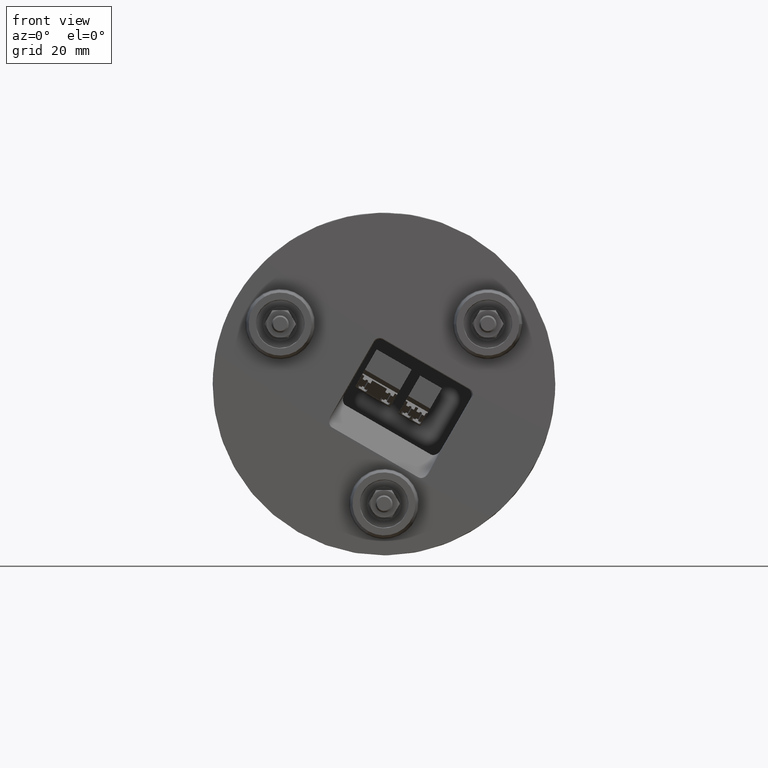
[diagram: clean part render]
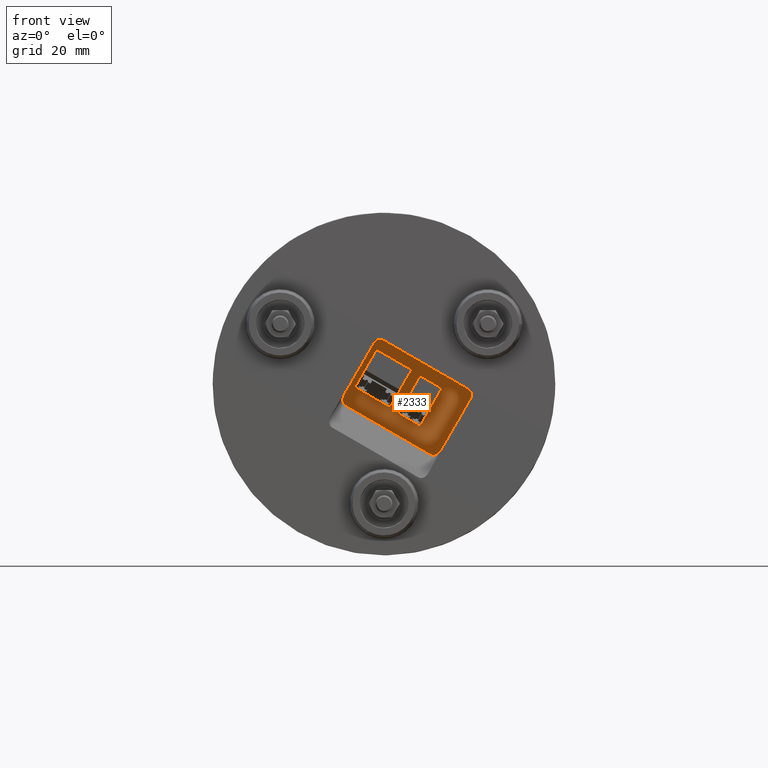
[diagram: same view with one face highlighted and labeled with its STEP entity id]
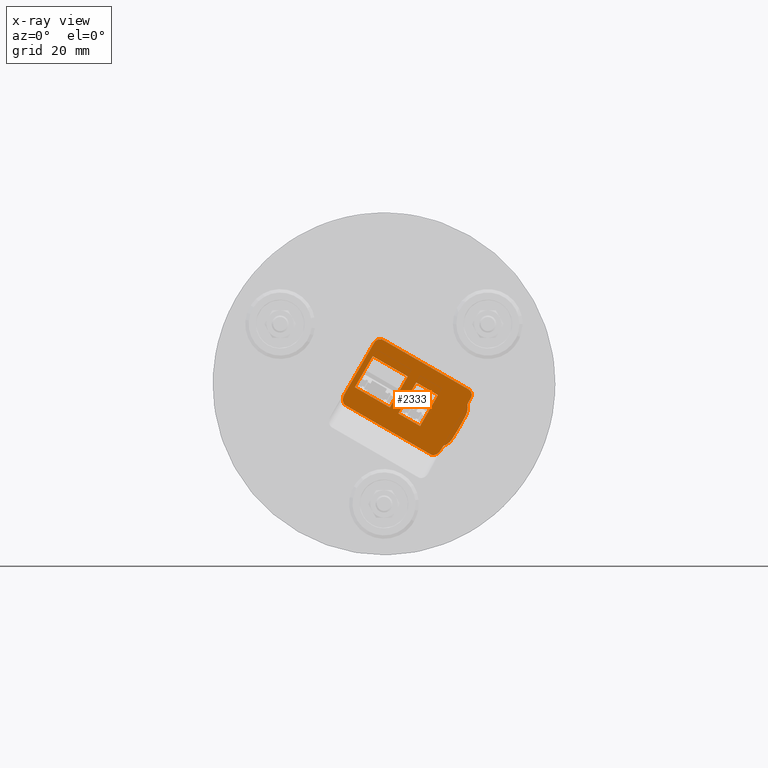
[diagram: x-ray of the same camera — body ghosted, the highlighted face saturated]
A machine part, front view. The second image highlights one B-rep face of the part: STEP entity #2333.
The next image is the same camera in x-ray: the body ghosted, the highlighted face saturated — about 0% of this face is hidden behind the body in this view.
In plain terms, the highlighted planar face has unit normal (-0, -1, 0).
Its self-contained STEP definition (entity closure, byte-faithful):
#79 = CARTESIAN_POINT ( 'NONE',  ( 4.902183732581579356, 21.85000000000000142, -1.329168707131093807 ) ) ;
#162 = CARTESIAN_POINT ( 'NONE',  ( 25.01902478308251432, 21.85000000000001918, -1.743034779679827562 ) ) ;
#166 = EDGE_CURVE ( 'NONE', #4940, #6361, #8542, .T. ) ;
#239 = CARTESIAN_POINT ( 'NONE',  ( -11.16915704096282091, 21.85000000000000142, -6.253190095488600164 ) ) ;
#288 = CARTESIAN_POINT ( 'NONE',  ( 13.59255079089150087, 21.85000000000000142, -20.54936878855840021 ) ) ;
#415 = CARTESIAN_POINT ( 'NONE',  ( 25.28521886244825012, 21.85000000000000142, -4.204716255604415309 ) ) ;
#435 = CARTESIAN_POINT ( 'NONE',  ( -2.591901714933272594, 21.85000000000001918, 12.51069453529683706 ) ) ;
#488 = EDGE_CURVE ( 'NONE', #7320, #1165, #6781, .T. ) ;
#498 = CARTESIAN_POINT ( 'NONE',  ( -12.16846356237257787, 21.85000000000000853, -5.625999451964581510 ) ) ;
#554 = VERTEX_POINT ( 'NONE', #7657 ) ;
#644 = DIRECTION ( 'NONE',  ( 0.8660254036215786488, -1.021804018925549457E-16, -0.5000000002820818024 ) ) ;
#691 =( BOUNDED_CURVE ( )  B_SPLINE_CURVE ( 3, ( #5982, #6023, #8006, #2610 ),
 .UNSPECIFIED., .F., .F. ) 
 B_SPLINE_CURVE_WITH_KNOTS ( ( 4, 4 ),
 ( 2.168404344971010101E-16, 0.7847891758013999519 ),
 .UNSPECIFIED. ) 
 CURVE ( )  GEOMETRIC_REPRESENTATION_ITEM ( )  RATIONAL_B_SPLINE_CURVE ( ( 1.000000000000000000, 0.9493306762745480354, 0.9493306762745480354, 1.000000000000000000 ) ) 
 REPRESENTATION_ITEM ( '' )  );
#698 = CARTESIAN_POINT ( 'NONE',  ( -3.391027403784485195, 21.85000000000000142, -3.873431753212990269 ) ) ;
#816 = EDGE_CURVE ( 'NONE', #554, #7688, #691, .T. ) ;
#829 = AXIS2_PLACEMENT_3D ( 'NONE', #4127, #6285, #2299 ) ;
#839 = ORIENTED_EDGE ( 'NONE', *, *, #488, .F. ) ;
#840 = EDGE_CURVE ( 'NONE', #5662, #3509, #4904, .T. ) ;
#847 = VECTOR ( 'NONE', #644, 1000.000000000000000 ) ;
#863 = CARTESIAN_POINT ( 'NONE',  ( 24.34150928055874985, 21.85000000000000142, -5.839269197797090527 ) ) ;
#868 = AXIS2_PLACEMENT_3D ( 'NONE', #8422, #1560, #7627 ) ;
#903 = CARTESIAN_POINT ( 'NONE',  ( 10.54054566609687882, 21.85000000000000142, -12.26323937402013975 ) ) ;
#951 = VECTOR ( 'NONE', #7228, 1000.000000000000114 ) ;
#978 = ORIENTED_EDGE ( 'NONE', *, *, #4134, .F. ) ;
#980 = EDGE_CURVE ( 'NONE', #1878, #4700, #1006, .T. ) ;
#1006 = LINE ( 'NONE', #3704, #8745 ) ;
#1012 = ORIENTED_EDGE ( 'NONE', *, *, #4347, .F. ) ;
#1049 = DIRECTION ( 'NONE',  ( -0.5000000002820849110, -6.750380208324718047E-17, -0.8660254036215768725 ) ) ;
#1165 = VERTEX_POINT ( 'NONE', #2187 ) ;
#1166 = VERTEX_POINT ( 'NONE', #6934 ) ;
#1168 = DIRECTION ( 'NONE',  ( 1.775317581900329579E-14, -1.299012864805119267E-16, -1.000000000000000000 ) ) ;
#1186 = VERTEX_POINT ( 'NONE', #863 ) ;
#1202 = EDGE_CURVE ( 'NONE', #4838, #5978, #7552, .T. ) ;
#1256 = LINE ( 'NONE', #3913, #951 ) ;
#1307 = LINE ( 'NONE', #7416, #7775 ) ;
#1328 = AXIS2_PLACEMENT_3D ( 'NONE', #7537, #6919, #8246 ) ;
#1358 = EDGE_CURVE ( 'NONE', #3509, #7110, #1256, .T. ) ;
#1503 = PLANE ( 'NONE',  #1328 ) ;
#1560 = DIRECTION ( 'NONE',  ( 5.473892273054979473E-17, 1.000000000000000000, -1.127510013337229951E-31 ) ) ;
#1615 = ORIENTED_EDGE ( 'NONE', *, *, #6458, .F. ) ;
#1641 = ORIENTED_EDGE ( 'NONE', *, *, #980, .F. ) ;
#1674 = ORIENTED_EDGE ( 'NONE', *, *, #4831, .F. ) ;
#1762 =( BOUNDED_CURVE ( )  B_SPLINE_CURVE ( 3, ( #5536, #2041, #8239, #4203 ),
 .UNSPECIFIED., .F., .F. ) 
 B_SPLINE_CURVE_WITH_KNOTS ( ( 4, 4 ),
 ( 1.622224293310129850, 3.169333955144944870 ),
 .UNSPECIFIED. ) 
 CURVE ( )  GEOMETRIC_REPRESENTATION_ITEM ( )  RATIONAL_B_SPLINE_CURVE ( ( 1.000000000000000000, 0.8102876638024719691, 0.8102876638024719691, 1.000000000000000000 ) ) 
 REPRESENTATION_ITEM ( '' )  );
#1838 = FACE_BOUND ( 'NONE', #4402, .T. ) ;
#1878 = VERTEX_POINT ( 'NONE', #3997 ) ;
#1937 = VECTOR ( 'NONE', #3245, 1000.000000000000114 ) ;
#1960 = VERTEX_POINT ( 'NONE', #6094 ) ;
#2015 = VECTOR ( 'NONE', #2370, 1000.000000000000114 ) ;
#2041 = CARTESIAN_POINT ( 'NONE',  ( 15.83144811766105775, 21.84999999999998366, -20.57912749636696503 ) ) ;
#2055 =( BOUNDED_CURVE ( )  B_SPLINE_CURVE ( 3, ( #5912, #435, #7946, #3876 ),
 .UNSPECIFIED., .F., .F. ) 
 B_SPLINE_CURVE_WITH_KNOTS ( ( 4, 4 ),
 ( 5.498396131378100016, 6.283185307179590673 ),
 .UNSPECIFIED. ) 
 CURVE ( )  GEOMETRIC_REPRESENTATION_ITEM ( )  RATIONAL_B_SPLINE_CURVE ( ( 1.000000000000000000, 0.9493306762745369332, 0.9493306762745369332, 1.000000000000000000 ) ) 
 REPRESENTATION_ITEM ( '' )  );
#2070 = DIRECTION ( 'NONE',  ( -0.5000000000000099920, -6.750380211652858112E-17, -0.8660254037844328234 ) ) ;
#2087 = LINE ( 'NONE', #4176, #8684 ) ;
#2187 = CARTESIAN_POINT ( 'NONE',  ( 17.22771009327700042, 21.85000000000000142, -18.16073081574285197 ) ) ;
#2291 = EDGE_CURVE ( 'NONE', #4700, #554, #2055, .T. ) ;
#2299 = DIRECTION ( 'NONE',  ( -4.119591534116790612E-15, 0.000000000000000000, -1.000000000000000000 ) ) ;
#2322 = ORIENTED_EDGE ( 'NONE', *, *, #2435, .F. ) ;
#2333 = ADVANCED_FACE ( 'NONE', ( #1838, #4548, #2413 ), #1503, .T. ) ;
#2365 = EDGE_CURVE ( 'NONE', #3478, #3521, #4157, .T. ) ;
#2367 = CARTESIAN_POINT ( 'NONE',  ( 1.808473596215614876, 21.85000000000000142, 5.132368152792130545 ) ) ;
#2370 = DIRECTION ( 'NONE',  ( 0.5000000000000099920, 6.750380211652858112E-17, 0.8660254037844328234 ) ) ;
#2387 = ORIENTED_EDGE ( 'NONE', *, *, #2558, .F. ) ;
#2413 = FACE_OUTER_BOUND ( 'NONE', #3999, .T. ) ;
#2435 = EDGE_CURVE ( 'NONE', #1165, #7964, #2087, .T. ) ;
#2453 = CARTESIAN_POINT ( 'NONE',  ( -5.334236540150419259, 21.85000000000000142, 4.580831292869030236 ) ) ;
#2558 = EDGE_CURVE ( 'NONE', #6361, #4391, #6018, .T. ) ;
#2581 = CARTESIAN_POINT ( 'NONE',  ( -8.443008986037188635, 21.85000000000000142, 17.57627943908610035 ) ) ;
#2610 = CARTESIAN_POINT ( 'NONE',  ( -0.1302202390086980022, 21.85000000000000142, 12.77688861466253911 ) ) ;
#2712 = CIRCLE ( 'NONE', #868, 5.053093623318319239 ) ;
#2851 = EDGE_CURVE ( 'NONE', #7964, #5741, #1762, .T. ) ;
#2874 = CARTESIAN_POINT ( 'NONE',  ( 1.727182732236854923, 21.85000000000000142, -6.828431751460009913 ) ) ;
#2968 = CARTESIAN_POINT ( 'NONE',  ( 25.62410694609626205, 21.85000000000000497, -3.206731086924946350 ) ) ;
#2995 = LINE ( 'NONE', #2367, #5198 ) ;
#3003 = ORIENTED_EDGE ( 'NONE', *, *, #2291, .F. ) ;
#3196 = CARTESIAN_POINT ( 'NONE',  ( -47.41489084828180012, 21.85000000000000142, 27.37500001544420059 ) ) ;
#3245 = DIRECTION ( 'NONE',  ( -0.5000000000000099920, -6.750380211652858112E-17, -0.8660254037844328234 ) ) ;
#3452 = CARTESIAN_POINT ( 'NONE',  ( -11.18517926977855481, 21.84999999999999432, -6.243939657361870843 ) ) ;
#3478 = VERTEX_POINT ( 'NONE', #4983 ) ;
#3480 = CARTESIAN_POINT ( 'NONE',  ( 11.31640919247115917, 21.85000000000000142, -10.91940434820033978 ) ) ;
#3509 = VERTEX_POINT ( 'NONE', #903 ) ;
#3521 = VERTEX_POINT ( 'NONE', #3604 ) ;
#3604 = CARTESIAN_POINT ( 'NONE',  ( -11.21667635569646038, 21.85000000000000142, -6.224544975927090107 ) ) ;
#3625 = ORIENTED_EDGE ( 'NONE', *, *, #6890, .T. ) ;
#3669 = EDGE_CURVE ( 'NONE', #1960, #7320, #6646, .T. ) ;
#3694 = CARTESIAN_POINT ( 'NONE',  ( -2.860606755253030098, 21.85000000000000142, 12.04528375356323977 ) ) ;
#3704 = CARTESIAN_POINT ( 'NONE',  ( -23.61121594257300060, 21.85000000000000142, -23.89582561984500231 ) ) ;
#3821 = VECTOR ( 'NONE', #7370, 1000.000000000000114 ) ;
#3872 = LINE ( 'NONE', #2453, #1937 ) ;
#3876 = CARTESIAN_POINT ( 'NONE',  ( -1.646987847786125059, 21.85000000000000142, 12.97676936261991898 ) ) ;
#3913 = CARTESIAN_POINT ( 'NONE',  ( 3.343874561216960029, 21.85000000000000142, -8.108239365835020251 ) ) ;
#3936 = CARTESIAN_POINT ( 'NONE',  ( -11.53192662277062119, 21.85000000000000142, -2.973882814360995219 ) ) ;
#3997 = CARTESIAN_POINT ( 'NONE',  ( -11.53192662277062119, 21.85000000000000142, -2.973882814360995219 ) ) ;
#3999 = EDGE_LOOP ( 'NONE', ( #839, #8638, #4494, #1615, #2387, #6410, #4832, #7361, #3003, #1641, #978, #8509, #7125, #6294, #2322 ) ) ;
#4127 = CARTESIAN_POINT ( 'NONE',  ( 15.64244660429474720, 21.85000000000000142, -13.36274219169212074 ) ) ;
#4134 = EDGE_CURVE ( 'NONE', #3521, #1878, #7812, .T. ) ;
#4157 =( BOUNDED_CURVE ( )  B_SPLINE_CURVE ( 3, ( #239, #3452, #4837, #4262 ),
 .UNSPECIFIED., .F., .F. ) 
 B_SPLINE_CURVE_WITH_KNOTS ( ( 4, 4 ),
 ( 6.255444005624429593, 6.283185307179580015 ),
 .UNSPECIFIED. ) 
 CURVE ( )  GEOMETRIC_REPRESENTATION_ITEM ( )  RATIONAL_B_SPLINE_CURVE ( ( 1.000000000000000000, 0.9999358693772130158, 0.9999358693772130158, 1.000000000000000000 ) ) 
 REPRESENTATION_ITEM ( '' )  );
#4176 = CARTESIAN_POINT ( 'NONE',  ( 4.534609675128700168, 21.85000000000000142, -40.14582562901239271 ) ) ;
#4203 = CARTESIAN_POINT ( 'NONE',  ( 13.59255079089150087, 21.85000000000000142, -20.54936878855840021 ) ) ;
#4232 = AXIS2_PLACEMENT_3D ( 'NONE', #3196, #5902, #1168 ) ;
#4262 = CARTESIAN_POINT ( 'NONE',  ( -11.21667635569646038, 21.85000000000000142, -6.224544975927090107 ) ) ;
#4293 = CARTESIAN_POINT ( 'NONE',  ( 19.88683889597530197, 21.85000000000000142, -16.10480149818850037 ) ) ;
#4347 = EDGE_CURVE ( 'NONE', #7626, #4462, #2995, .T. ) ;
#4369 = ORIENTED_EDGE ( 'NONE', *, *, #6454, .T. ) ;
#4391 = VERTEX_POINT ( 'NONE', #5034 ) ;
#4402 = EDGE_LOOP ( 'NONE', ( #5669, #6037, #1674, #1012 ) ) ;
#4420 = CARTESIAN_POINT ( 'NONE',  ( 4.951122461751809922, 21.85000000000000142, -7.244404340750279836 ) ) ;
#4458 = CARTESIAN_POINT ( 'NONE',  ( 4.534609675128069561, 21.85000000000000142, -40.14582562901264851 ) ) ;
#4462 = VERTEX_POINT ( 'NONE', #4592 ) ;
#4494 = ORIENTED_EDGE ( 'NONE', *, *, #5643, .F. ) ;
#4502 = VECTOR ( 'NONE', #2070, 1000.000000000000114 ) ;
#4548 = FACE_BOUND ( 'NONE', #8663, .T. ) ;
#4564 = VECTOR ( 'NONE', #1049, 999.9999999999998863 ) ;
#4592 = CARTESIAN_POINT ( 'NONE',  ( -3.309736540856585307, 21.85000000000000142, 8.087368151569018337 ) ) ;
#4608 = LINE ( 'NONE', #6434, #6938 ) ;
#4700 = VERTEX_POINT ( 'NONE', #3694 ) ;
#4804 = LINE ( 'NONE', #79, #3821 ) ;
#4831 = EDGE_CURVE ( 'NONE', #4462, #4838, #3872, .T. ) ;
#4832 = ORIENTED_EDGE ( 'NONE', *, *, #8297, .F. ) ;
#4837 = CARTESIAN_POINT ( 'NONE',  ( -11.20102005723597927, 21.84999999999999432, -6.234390671792309213 ) ) ;
#4838 = VERTEX_POINT ( 'NONE', #5958 ) ;
#4904 = LINE ( 'NONE', #3480, #4502 ) ;
#4940 = VERTEX_POINT ( 'NONE', #8701 ) ;
#4976 = CARTESIAN_POINT ( 'NONE',  ( 15.74004666464569979, 21.85000000051370250, -3.257439477728709676 ) ) ;
#4983 = CARTESIAN_POINT ( 'NONE',  ( -11.16915704096282091, 21.85000000000000142, -6.253190095488600164 ) ) ;
#4986 = ORIENTED_EDGE ( 'NONE', *, *, #1358, .T. ) ;
#4990 = CARTESIAN_POINT ( 'NONE',  ( -0.1302202390086980022, 21.85000000000000142, 12.77688861466253911 ) ) ;
#5034 = CARTESIAN_POINT ( 'NONE',  ( 25.28521886244825012, 21.85000000000000142, -4.204716255604415309 ) ) ;
#5081 = DIRECTION ( 'NONE',  ( -0.8660254037844328234, 1.021804018705681843E-16, 0.5000000000000099920 ) ) ;
#5141 = CARTESIAN_POINT ( 'NONE',  ( 25.55392390276803027, 21.85000000000000497, -3.739305473870846885 ) ) ;
#5198 = VECTOR ( 'NONE', #5081, 1000.000000000000114 ) ;
#5322 = CARTESIAN_POINT ( 'NONE',  ( -11.21667635569646038, 21.85000000000000142, -6.224544975927090107 ) ) ;
#5327 = DIRECTION ( 'NONE',  ( -0.8660254036215786488, 1.021804018925549457E-16, 0.5000000002820818024 ) ) ;
#5536 = CARTESIAN_POINT ( 'NONE',  ( 16.61389899493065059, 21.85000000000000142, -19.22388282352864763 ) ) ;
#5584 = DIRECTION ( 'NONE',  ( -0.5000000002820729206, -6.750380208324857331E-17, -0.8660254036215837559 ) ) ;
#5643 = EDGE_CURVE ( 'NONE', #1186, #1960, #2712, .T. ) ;
#5658 = CARTESIAN_POINT ( 'NONE',  ( 25.48509961040560157, 21.85000000000000142, -2.687948646826869847 ) ) ;
#5662 = VERTEX_POINT ( 'NONE', #4976 ) ;
#5669 = ORIENTED_EDGE ( 'NONE', *, *, #7880, .F. ) ;
#5741 = VERTEX_POINT ( 'NONE', #288 ) ;
#5881 = CARTESIAN_POINT ( 'NONE',  ( -12.29713151617784916, 21.85000000000000853, -4.299256566945684810 ) ) ;
#5902 = DIRECTION ( 'NONE',  ( 5.473892273054999810E-17, 1.000000000000000000, -1.299012864805109899E-16 ) ) ;
#5912 = CARTESIAN_POINT ( 'NONE',  ( -2.860606755253030098, 21.85000000000000142, 12.04528375356323977 ) ) ;
#5958 = CARTESIAN_POINT ( 'NONE',  ( -8.509237534431211003, 21.85000000000000142, -0.9184317534068479061 ) ) ;
#5960 = DIRECTION ( 'NONE',  ( 0.8660254037844328234, -1.021804018705681843E-16, -0.5000000000000099920 ) ) ;
#5978 = VERTEX_POINT ( 'NONE', #2874 ) ;
#5982 = CARTESIAN_POINT ( 'NONE',  ( -1.646987847786125059, 21.85000000000000142, 12.97676936261991898 ) ) ;
#6018 =( BOUNDED_CURVE ( )  B_SPLINE_CURVE ( 3, ( #6469, #2968, #5141, #415 ),
 .UNSPECIFIED., .F., .F. ) 
 B_SPLINE_CURVE_WITH_KNOTS ( ( 4, 4 ),
 ( 0.000000000000000000, 0.7847891758014640118 ),
 .UNSPECIFIED. ) 
 CURVE ( )  GEOMETRIC_REPRESENTATION_ITEM ( )  RATIONAL_B_SPLINE_CURVE ( ( 1.000000000000000000, 0.9493306762745399308, 0.9493306762745399308, 1.000000000000000000 ) ) 
 REPRESENTATION_ITEM ( '' )  );
#6023 = CARTESIAN_POINT ( 'NONE',  ( -1.128205407688080975, 21.85000000000002274, 13.11577669831049420 ) ) ;
#6037 = ORIENTED_EDGE ( 'NONE', *, *, #1202, .F. ) ;
#6094 = CARTESIAN_POINT ( 'NONE',  ( 23.89058666235074924, 21.85000000000000142, -9.170106951352158475 ) ) ;
#6175 = DIRECTION ( 'NONE',  ( 0.8660254037844328234, -1.021804018705681843E-16, -0.5000000000000099920 ) ) ;
#6285 = DIRECTION ( 'NONE',  ( 5.473892273055009671E-17, 1.000000000000000000, -2.255020026674474791E-31 ) ) ;
#6294 = ORIENTED_EDGE ( 'NONE', *, *, #2851, .F. ) ;
#6361 = VERTEX_POINT ( 'NONE', #5658 ) ;
#6410 = ORIENTED_EDGE ( 'NONE', *, *, #166, .F. ) ;
#6434 = CARTESIAN_POINT ( 'NONE',  ( -19.44300899224300139, 21.85000000000000142, -1.476279440588607939 ) ) ;
#6454 = EDGE_CURVE ( 'NONE', #7110, #1166, #8488, .T. ) ;
#6458 = EDGE_CURVE ( 'NONE', #4391, #1186, #7116, .T. ) ;
#6469 = CARTESIAN_POINT ( 'NONE',  ( 25.48509961040560157, 21.85000000000000142, -2.687948646826869847 ) ) ;
#6646 = CIRCLE ( 'NONE', #4232, 80.12500212938479649 ) ;
#6781 = CIRCLE ( 'NONE', #829, 5.053093623318318350 ) ;
#6890 = EDGE_CURVE ( 'NONE', #1166, #5662, #1307, .T. ) ;
#6919 = DIRECTION ( 'NONE',  ( -5.473892273054959751E-17, -1.000000000000000000, 1.095502084202361979E-16 ) ) ;
#6934 = CARTESIAN_POINT ( 'NONE',  ( 9.374759942174199168, 21.85000000000000142, 0.4175605288570594653 ) ) ;
#6938 = VECTOR ( 'NONE', #5327, 1000.000000000000000 ) ;
#7110 = VERTEX_POINT ( 'NONE', #8423 ) ;
#7116 = LINE ( 'NONE', #4458, #4564 ) ;
#7125 = ORIENTED_EDGE ( 'NONE', *, *, #7130, .F. ) ;
#7130 = EDGE_CURVE ( 'NONE', #5741, #3478, #4608, .T. ) ;
#7228 = DIRECTION ( 'NONE',  ( -0.8660254037844328234, 1.021804018705681843E-16, 0.5000000000000099920 ) ) ;
#7320 = VERTEX_POINT ( 'NONE', #4293 ) ;
#7361 = ORIENTED_EDGE ( 'NONE', *, *, #816, .F. ) ;
#7370 = DIRECTION ( 'NONE',  ( 0.5000000000000099920, 6.750380211652858112E-17, 0.8660254037844328234 ) ) ;
#7416 = CARTESIAN_POINT ( 'NONE',  ( 8.543375552516808469, 21.85000000000000142, 0.8975605251008400565 ) ) ;
#7508 = CARTESIAN_POINT ( 'NONE',  ( 24.55361400134895078, 21.85000000000000142, -1.474329739360082048 ) ) ;
#7537 = CARTESIAN_POINT ( 'NONE',  ( -30.19300900092969897, 21.85000000000000142, -20.09582562299389963 ) ) ;
#7552 = LINE ( 'NONE', #698, #8755 ) ;
#7626 = VERTEX_POINT ( 'NONE', #7721 ) ;
#7627 = DIRECTION ( 'NONE',  ( -2.059795767058395306E-15, 0.000000000000000000, -1.000000000000000000 ) ) ;
#7657 = CARTESIAN_POINT ( 'NONE',  ( -1.646987847786125059, 21.85000000000000142, 12.97676936261991898 ) ) ;
#7688 = VERTEX_POINT ( 'NONE', #4990 ) ;
#7721 = CARTESIAN_POINT ( 'NONE',  ( 6.926683729355699981, 21.85000000000000142, 2.177368149554614885 ) ) ;
#7775 = VECTOR ( 'NONE', #5960, 1000.000000000000114 ) ;
#7812 =( BOUNDED_CURVE ( )  B_SPLINE_CURVE ( 3, ( #5322, #498, #5881, #3936 ),
 .UNSPECIFIED., .F., .F. ) 
 B_SPLINE_CURVE_WITH_KNOTS ( ( 4, 4 ),
 ( -8.881784197001250351E-16, 1.519368360279670149 ),
 .UNSPECIFIED. ) 
 CURVE ( )  GEOMETRIC_REPRESENTATION_ITEM ( )  RATIONAL_B_SPLINE_CURVE ( ( 1.000000000000000000, 0.8167023664422560225, 0.8167023664422560225, 1.000000000000000000 ) ) 
 REPRESENTATION_ITEM ( '' )  );
#7856 = DIRECTION ( 'NONE',  ( 0.5000000002820810252, 6.750380208324758723E-17, 0.8660254036215790929 ) ) ;
#7880 = EDGE_CURVE ( 'NONE', #5978, #7626, #4804, .T. ) ;
#7922 = ORIENTED_EDGE ( 'NONE', *, *, #840, .T. ) ;
#7946 = CARTESIAN_POINT ( 'NONE',  ( -2.165770287884225098, 21.85000000000001918, 12.83776202692934199 ) ) ;
#7964 = VERTEX_POINT ( 'NONE', #8037 ) ;
#8006 = CARTESIAN_POINT ( 'NONE',  ( -0.5956310207422292891, 21.85000000000002274, 13.04559365498228019 ) ) ;
#8037 = CARTESIAN_POINT ( 'NONE',  ( 16.61389899493065059, 21.85000000000000142, -19.22388282352864763 ) ) ;
#8119 = LINE ( 'NONE', #2581, #847 ) ;
#8130 = CARTESIAN_POINT ( 'NONE',  ( 25.48509961040560157, 21.85000000000000142, -2.687948646826869847 ) ) ;
#8218 = CARTESIAN_POINT ( 'NONE',  ( 25.34609227471501214, 21.85000000000001918, -2.169166206728822655 ) ) ;
#8239 = CARTESIAN_POINT ( 'NONE',  ( 14.58853635557537487, 21.84999999999998366, -21.12440132287014904 ) ) ;
#8246 = DIRECTION ( 'NONE',  ( -1.000000000000000000, 5.473892273054959751E-17, 0.000000000000000000 ) ) ;
#8297 = EDGE_CURVE ( 'NONE', #7688, #4940, #8119, .T. ) ;
#8422 = CARTESIAN_POINT ( 'NONE',  ( 19.39369749990249758, 21.85000000000000142, -6.865385053448670227 ) ) ;
#8423 = CARTESIAN_POINT ( 'NONE',  ( 4.175258945055359661, 21.85000000000000142, -8.588239372157570273 ) ) ;
#8488 = LINE ( 'NONE', #4420, #2015 ) ;
#8509 = ORIENTED_EDGE ( 'NONE', *, *, #2365, .F. ) ;
#8542 =( BOUNDED_CURVE ( )  B_SPLINE_CURVE ( 3, ( #7508, #162, #8218, #8130 ),
 .UNSPECIFIED., .F., .F. ) 
 B_SPLINE_CURVE_WITH_KNOTS ( ( 4, 4 ),
 ( 5.498396131378169294, 6.283185307179590673 ),
 .UNSPECIFIED. ) 
 CURVE ( )  GEOMETRIC_REPRESENTATION_ITEM ( )  RATIONAL_B_SPLINE_CURVE ( ( 1.000000000000000000, 0.9493306762745460370, 0.9493306762745460370, 1.000000000000000000 ) ) 
 REPRESENTATION_ITEM ( '' )  );
#8638 = ORIENTED_EDGE ( 'NONE', *, *, #3669, .F. ) ;
#8663 = EDGE_LOOP ( 'NONE', ( #7922, #4986, #4369, #3625 ) ) ;
#8684 = VECTOR ( 'NONE', #5584, 1000.000000000000000 ) ;
#8701 = CARTESIAN_POINT ( 'NONE',  ( 24.55361400134895078, 21.85000000000000142, -1.474329739360082048 ) ) ;
#8745 = VECTOR ( 'NONE', #7856, 1000.000000000000227 ) ;
#8755 = VECTOR ( 'NONE', #6175, 1000.000000000000114 ) ;